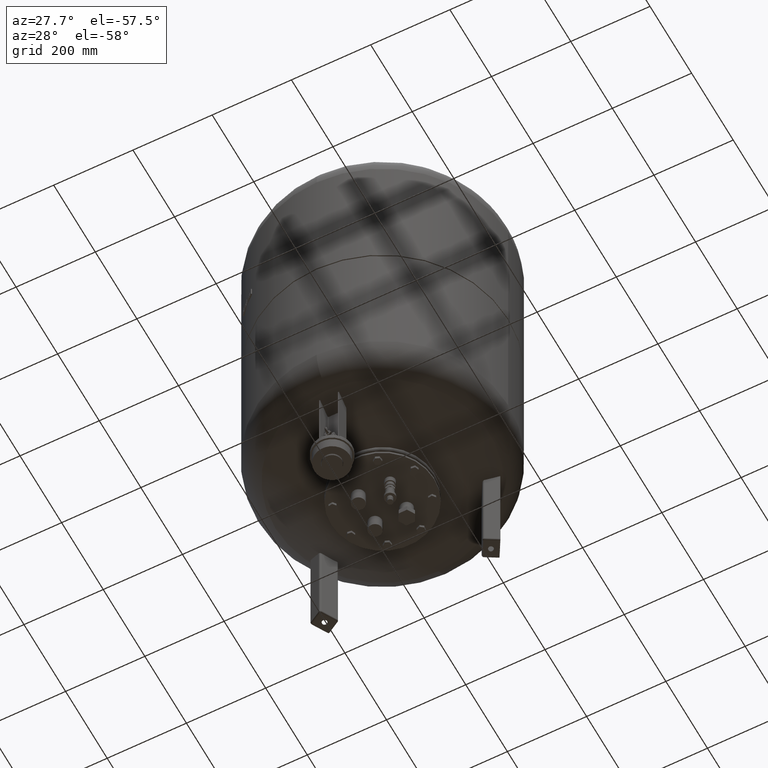
[diagram: clean part render]
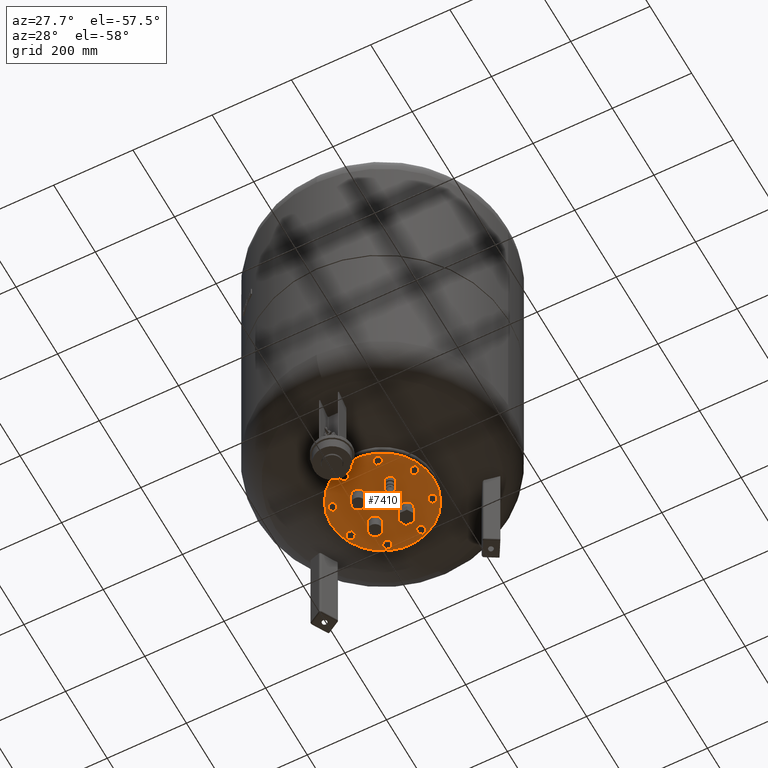
[diagram: same view with one face highlighted and labeled with its STEP entity id]
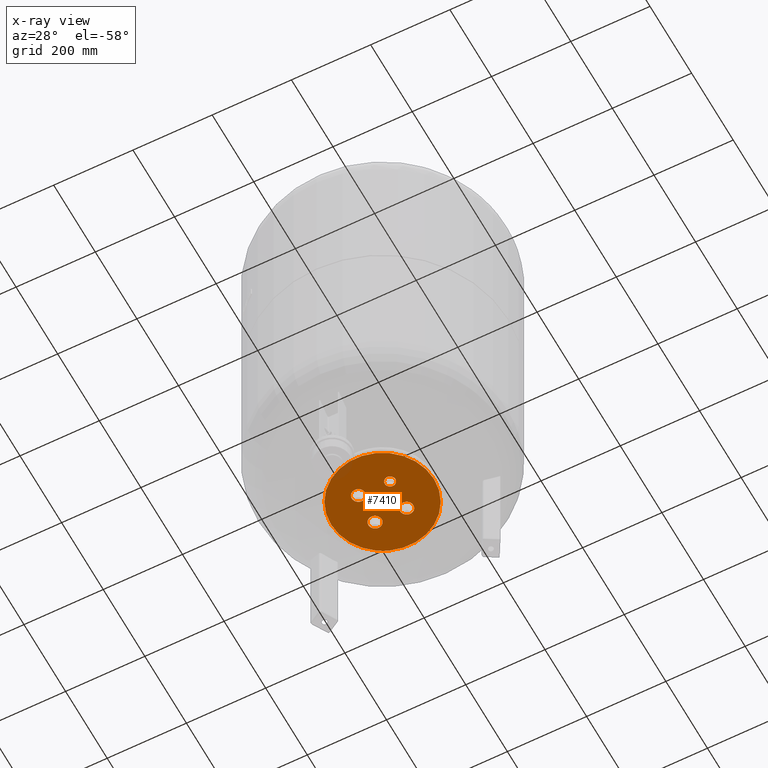
[diagram: x-ray of the same camera — body ghosted, the highlighted face saturated]
A machine part, auxiliary view. The second image highlights one B-rep face of the part: STEP entity #7410.
The next image is the same camera in x-ray: the body ghosted, the highlighted face saturated — about 2% of this face is hidden behind the body in this view.
In plain terms, the highlighted planar face has unit normal (0, 0, -1).
Its self-contained STEP definition (entity closure, byte-faithful):
#6510=CARTESIAN_POINT('',(130.0,-6.245699E-015,180.0));
#6511=VERTEX_POINT('',#6510);
#6520=CARTESIAN_POINT('',(-130.0,9.674184E-015,180.0));
#6521=VERTEX_POINT('',#6520);
#6522=CARTESIAN_POINT('',(4.874219E-031,-6.245699E-015,180.0));
#6523=DIRECTION('',(0.0,0.0,-1.0));
#6524=DIRECTION('',(1.0,0.0,0.0));
#6525=AXIS2_PLACEMENT_3D('',#6522,#6523,#6524);
#6526=CIRCLE('',#6525,130.0);
#6527=EDGE_CURVE('',#6521,#6511,#6526,.T.);
#6841=CARTESIAN_POINT('',(23.101533137039944,39.951533137039924,180.0));
#6842=VERTEX_POINT('',#6841);
#6858=CARTESIAN_POINT('',(56.801533137039954,39.951533137039924,180.0));
#6859=VERTEX_POINT('',#6858);
#6866=CARTESIAN_POINT('',(39.951533137039945,39.951533137039924,180.0));
#6867=DIRECTION('',(0.0,0.0,1.0));
#6868=DIRECTION('',(-1.0,0.0,0.0));
#6869=AXIS2_PLACEMENT_3D('',#6866,#6867,#6868);
#6870=CIRCLE('',#6869,16.850000000000001);
#6871=EDGE_CURVE('',#6842,#6859,#6870,.T.);
#6883=CARTESIAN_POINT('',(-56.801533137039932,39.951533137039938,180.0));
#6884=VERTEX_POINT('',#6883);
#6900=CARTESIAN_POINT('',(-23.101533137039922,39.951533137039938,180.0));
#6901=VERTEX_POINT('',#6900);
#6908=CARTESIAN_POINT('',(-39.951533137039931,39.951533137039938,180.0));
#6909=DIRECTION('',(0.0,0.0,1.0));
#6910=DIRECTION('',(-1.0,0.0,0.0));
#6911=AXIS2_PLACEMENT_3D('',#6908,#6909,#6910);
#6912=CIRCLE('',#6911,16.850000000000001);
#6913=EDGE_CURVE('',#6884,#6901,#6912,.T.);
#6925=CARTESIAN_POINT('',(-56.801533137039947,-39.951533137039938,180.0));
#6926=VERTEX_POINT('',#6925);
#6942=CARTESIAN_POINT('',(-23.101533137039940,-39.951533137039938,180.0));
#6943=VERTEX_POINT('',#6942);
#6950=CARTESIAN_POINT('',(-39.951533137039945,-39.951533137039938,180.0));
#6951=DIRECTION('',(0.0,0.0,1.0));
#6952=DIRECTION('',(-1.0,0.0,0.0));
#6953=AXIS2_PLACEMENT_3D('',#6950,#6951,#6952);
#6954=CIRCLE('',#6953,16.850000000000001);
#6955=EDGE_CURVE('',#6926,#6943,#6954,.T.);
#6967=CARTESIAN_POINT('',(26.501533137039932,-39.951533137039952,180.0));
#6968=VERTEX_POINT('',#6967);
#6984=CARTESIAN_POINT('',(53.401533137039927,-39.951533137039952,180.0));
#6985=VERTEX_POINT('',#6984);
#6992=CARTESIAN_POINT('',(39.951533137039931,-39.951533137039952,180.0));
#6993=DIRECTION('',(0.0,0.0,1.0));
#6994=DIRECTION('',(-1.0,0.0,0.0));
#6995=AXIS2_PLACEMENT_3D('',#6992,#6993,#6994);
#6996=CIRCLE('',#6995,13.449999999999999);
#6997=EDGE_CURVE('',#6968,#6985,#6996,.T.);
#7024=CARTESIAN_POINT('',(39.951533137039931,-39.951533137039952,180.0));
#7025=DIRECTION('',(0.0,0.0,1.0));
#7026=DIRECTION('',(-1.0,0.0,0.0));
#7027=AXIS2_PLACEMENT_3D('',#7024,#7025,#7026);
#7028=CIRCLE('',#7027,13.449999999999999);
#7029=EDGE_CURVE('',#6985,#6968,#7028,.T.);
#7042=CARTESIAN_POINT('',(-39.951533137039945,-39.951533137039938,180.0));
#7043=DIRECTION('',(0.0,0.0,1.0));
#7044=DIRECTION('',(-1.0,0.0,0.0));
#7045=AXIS2_PLACEMENT_3D('',#7042,#7043,#7044);
#7046=CIRCLE('',#7045,16.850000000000001);
#7047=EDGE_CURVE('',#6943,#6926,#7046,.T.);
#7076=CARTESIAN_POINT('',(-39.951533137039931,39.951533137039938,180.0));
#7077=DIRECTION('',(0.0,0.0,1.0));
#7078=DIRECTION('',(-1.0,0.0,0.0));
#7079=AXIS2_PLACEMENT_3D('',#7076,#7077,#7078);
#7080=CIRCLE('',#7079,16.850000000000001);
#7081=EDGE_CURVE('',#6901,#6884,#7080,.T.);
#7110=CARTESIAN_POINT('',(39.951533137039945,39.951533137039924,180.0));
#7111=DIRECTION('',(0.0,0.0,1.0));
#7112=DIRECTION('',(-1.0,0.0,0.0));
#7113=AXIS2_PLACEMENT_3D('',#7110,#7111,#7112);
#7114=CIRCLE('',#7113,16.850000000000001);
#7115=EDGE_CURVE('',#6859,#6842,#7114,.T.);
#7375=CARTESIAN_POINT('',(4.874219E-031,-6.245699E-015,180.0));
#7376=DIRECTION('',(0.0,0.0,-1.0));
#7377=DIRECTION('',(1.0,0.0,0.0));
#7378=AXIS2_PLACEMENT_3D('',#7375,#7376,#7377);
#7379=CIRCLE('',#7378,130.0);
#7380=EDGE_CURVE('',#6511,#6521,#7379,.T.);
#7385=CARTESIAN_POINT('',(65.0,-6.245699E-015,180.0));
#7386=DIRECTION('',(0.0,0.0,-1.0));
#7387=DIRECTION('',(0.0,1.0,0.0));
#7388=AXIS2_PLACEMENT_3D('',#7385,#7386,#7387);
#7389=PLANE('',#7388);
#7390=ORIENTED_EDGE('',*,*,#7380,.T.);
#7391=ORIENTED_EDGE('',*,*,#6527,.T.);
#7392=EDGE_LOOP('',(#7390,#7391));
#7393=FACE_OUTER_BOUND('',#7392,.T.);
#7394=ORIENTED_EDGE('',*,*,#7029,.T.);
#7395=ORIENTED_EDGE('',*,*,#6997,.T.);
#7396=EDGE_LOOP('',(#7394,#7395));
#7397=FACE_BOUND('',#7396,.T.);
#7398=ORIENTED_EDGE('',*,*,#7047,.T.);
#7399=ORIENTED_EDGE('',*,*,#6955,.T.);
#7400=EDGE_LOOP('',(#7398,#7399));
#7401=FACE_BOUND('',#7400,.T.);
#7402=ORIENTED_EDGE('',*,*,#7081,.T.);
#7403=ORIENTED_EDGE('',*,*,#6913,.T.);
#7404=EDGE_LOOP('',(#7402,#7403));
#7405=FACE_BOUND('',#7404,.T.);
#7406=ORIENTED_EDGE('',*,*,#7115,.T.);
#7407=ORIENTED_EDGE('',*,*,#6871,.T.);
#7408=EDGE_LOOP('',(#7406,#7407));
#7409=FACE_BOUND('',#7408,.T.);
#7410=ADVANCED_FACE('',(#7393,#7397,#7401,#7405,#7409),#7389,.T.);